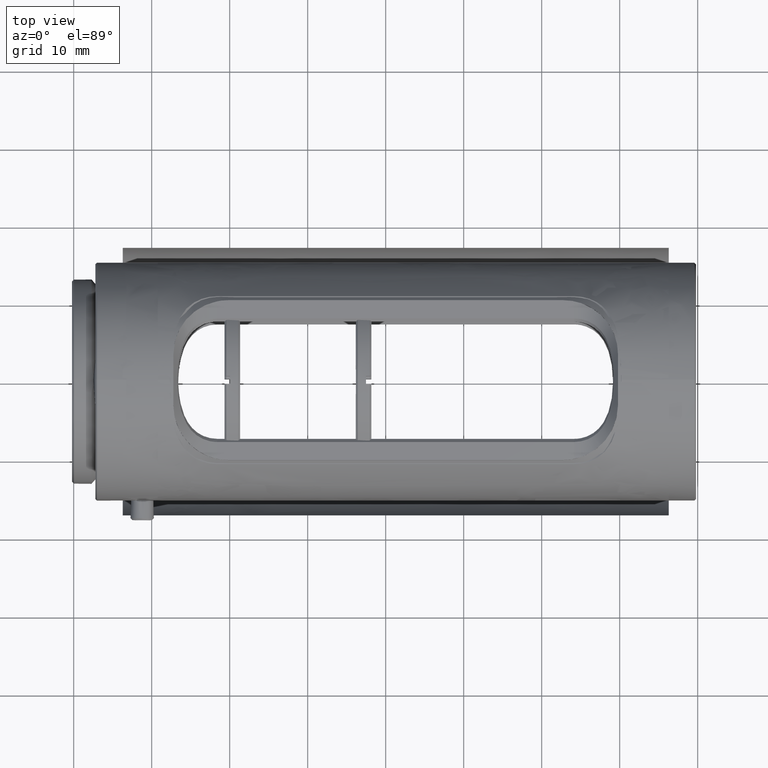
[diagram: clean part render]
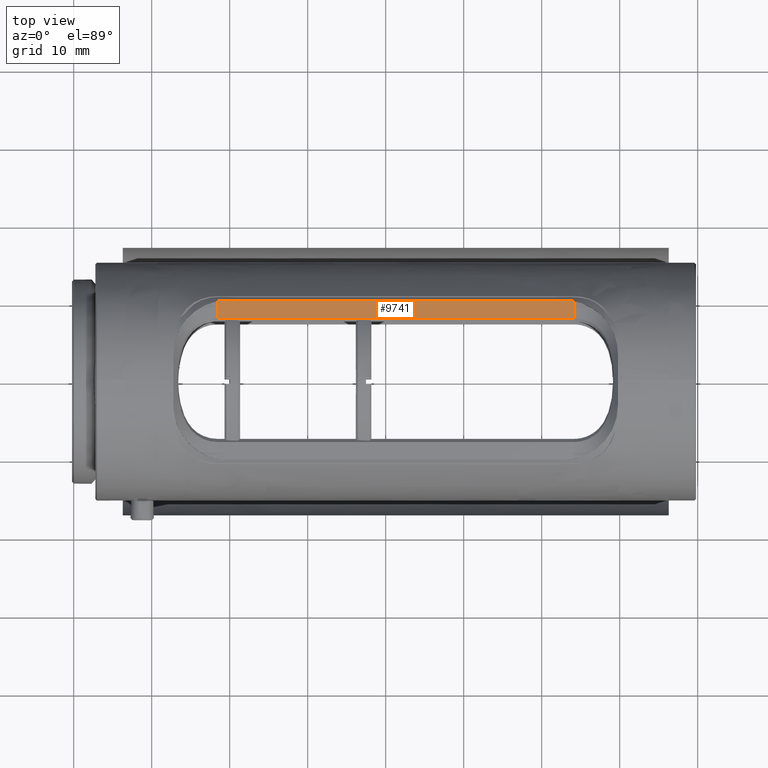
[diagram: same view with one face highlighted and labeled with its STEP entity id]
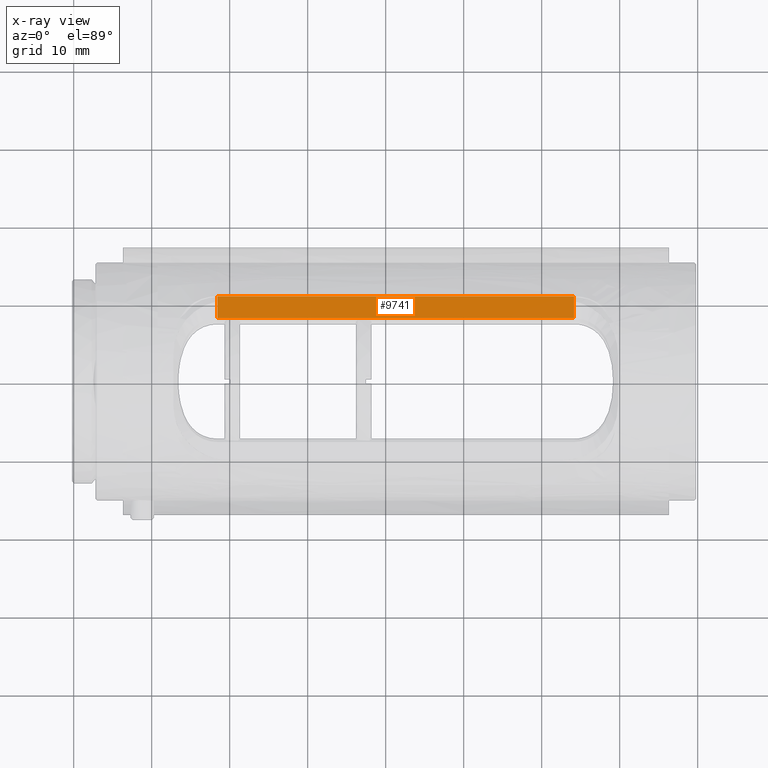
[diagram: x-ray of the same camera — body ghosted, the highlighted face saturated]
A machine part, top view. The second image highlights one B-rep face of the part: STEP entity #9741.
The next image is the same camera in x-ray: the body ghosted, the highlighted face saturated — about 0% of this face is hidden behind the body in this view.
In plain terms, the highlighted face is a freeform B-spline surface patch.
Its self-contained STEP definition (entity closure, byte-faithful):
#319 = CARTESIAN_POINT ( 'NONE',  ( -35.85715672482449179, 10.76673116595749846, 10.80000000000000071 ) ) ;
#635 = EDGE_CURVE ( 'NONE', #4706, #12369, #11406, .T. ) ;
#759 = ORIENTED_EDGE ( 'NONE', *, *, #4524, .T. ) ;
#1115 = CARTESIAN_POINT ( 'NONE',  ( -81.57715672482450486, 7.920399482688930348, 10.80000000000000071 ) ) ;
#1146 = CARTESIAN_POINT ( 'NONE',  ( -81.57715672482450486, 10.76673116595749846, 10.80000000000000071 ) ) ;
#2246 = CARTESIAN_POINT ( 'NONE',  ( -81.57715672482450486, 7.920399482688930348, 10.80000000000000071 ) ) ;
#2692 = CARTESIAN_POINT ( 'NONE',  ( -35.85715672482449179, 10.76673116595749846, 10.80000000000000071 ) ) ;
#3088 = CARTESIAN_POINT ( 'NONE',  ( -81.57715672482450486, 7.920399482688930348, 10.80000000000000071 ) ) ;
#4408 = B_SPLINE_SURFACE_WITH_KNOTS ( 'NONE', 1, 1, ( 
 ( #12231, #1146 ),
 ( #5219, #8349 ) ),
 .UNSPECIFIED., .F., .F., .F.,
 ( 2, 2 ),
 ( 2, 2 ),
 ( 0.000000000000000000, 1.000000000000000000 ),
 ( 0.000000000000000000, 1.000000000000000000 ),
 .UNSPECIFIED. ) ;
#4524 = EDGE_CURVE ( 'NONE', #12369, #5205, #5093, .T. ) ;
#4706 = VERTEX_POINT ( 'NONE', #1115 ) ;
#4768 = CARTESIAN_POINT ( 'NONE',  ( -35.85715672482449179, 7.920399482688939230, 10.80000000000000071 ) ) ;
#5093 = B_SPLINE_CURVE_WITH_KNOTS ( 'NONE', 1,
 ( #9596, #319 ),
 .UNSPECIFIED., .F., .F.,
 ( 2, 2 ),
 ( 0.000000000000000000, 1.000000000000000000 ),
 .UNSPECIFIED. ) ;
#5205 = VERTEX_POINT ( 'NONE', #11864 ) ;
#5219 = CARTESIAN_POINT ( 'NONE',  ( -35.85715672482449179, 7.920399482688930348, 10.80000000000000071 ) ) ;
#5248 = CARTESIAN_POINT ( 'NONE',  ( -81.57715672482450486, 10.76673116595749846, 10.80000000000000071 ) ) ;
#5321 = EDGE_CURVE ( 'NONE', #11861, #4706, #6480, .T. ) ;
#5690 = CARTESIAN_POINT ( 'NONE',  ( -81.57715672482450486, 10.76673116595749846, 10.80000000000000071 ) ) ;
#6044 =( BOUNDED_CURVE ( )  B_SPLINE_CURVE ( 1, ( #5690, #2692 ),
 .UNSPECIFIED., .F., .F. ) 
 B_SPLINE_CURVE_WITH_KNOTS ( ( 2, 2 ),
 ( 0.000000000000000000, 1.000000000000000000 ),
 .UNSPECIFIED. ) 
 CURVE ( )  GEOMETRIC_REPRESENTATION_ITEM ( )  RATIONAL_B_SPLINE_CURVE ( ( 0.5861612630242492017, 0.5861612630242492017 ) ) 
 REPRESENTATION_ITEM ( '' )  );
#6457 = CARTESIAN_POINT ( 'NONE',  ( -81.57715672482450486, 10.76673116595749846, 10.80000000000000071 ) ) ;
#6480 = B_SPLINE_CURVE_WITH_KNOTS ( 'NONE', 1,
 ( #5248, #2246 ),
 .UNSPECIFIED., .F., .F.,
 ( 2, 2 ),
 ( -1.000000000000000000, 0.000000000000000000 ),
 .UNSPECIFIED. ) ;
#6553 = EDGE_LOOP ( 'NONE', ( #10029, #9641, #13072, #759 ) ) ;
#8227 = CARTESIAN_POINT ( 'NONE',  ( -35.85715672482449179, 7.920399482688939230, 10.80000000000000071 ) ) ;
#8349 = CARTESIAN_POINT ( 'NONE',  ( -35.85715672482449179, 10.76673116595749846, 10.80000000000000071 ) ) ;
#9360 = FACE_OUTER_BOUND ( 'NONE', #6553, .T. ) ;
#9596 = CARTESIAN_POINT ( 'NONE',  ( -35.85715672482449179, 7.920399482688939230, 10.80000000000000071 ) ) ;
#9641 = ORIENTED_EDGE ( 'NONE', *, *, #5321, .T. ) ;
#9741 = ADVANCED_FACE ( 'NONE', ( #9360 ), #4408, .T. ) ;
#10029 = ORIENTED_EDGE ( 'NONE', *, *, #11793, .F. ) ;
#11406 = B_SPLINE_CURVE_WITH_KNOTS ( 'NONE', 1,
 ( #3088, #8227 ),
 .UNSPECIFIED., .F., .F.,
 ( 2, 2 ),
 ( 0.000000000000000000, 1.000000000000000000 ),
 .UNSPECIFIED. ) ;
#11793 = EDGE_CURVE ( 'NONE', #11861, #5205, #6044, .T. ) ;
#11861 = VERTEX_POINT ( 'NONE', #6457 ) ;
#11864 = CARTESIAN_POINT ( 'NONE',  ( -35.85715672482449179, 10.76673116595749846, 10.80000000000000071 ) ) ;
#12231 = CARTESIAN_POINT ( 'NONE',  ( -81.57715672482450486, 7.920399482688919690, 10.80000000000000071 ) ) ;
#12369 = VERTEX_POINT ( 'NONE', #4768 ) ;
#13072 = ORIENTED_EDGE ( 'NONE', *, *, #635, .T. ) ;